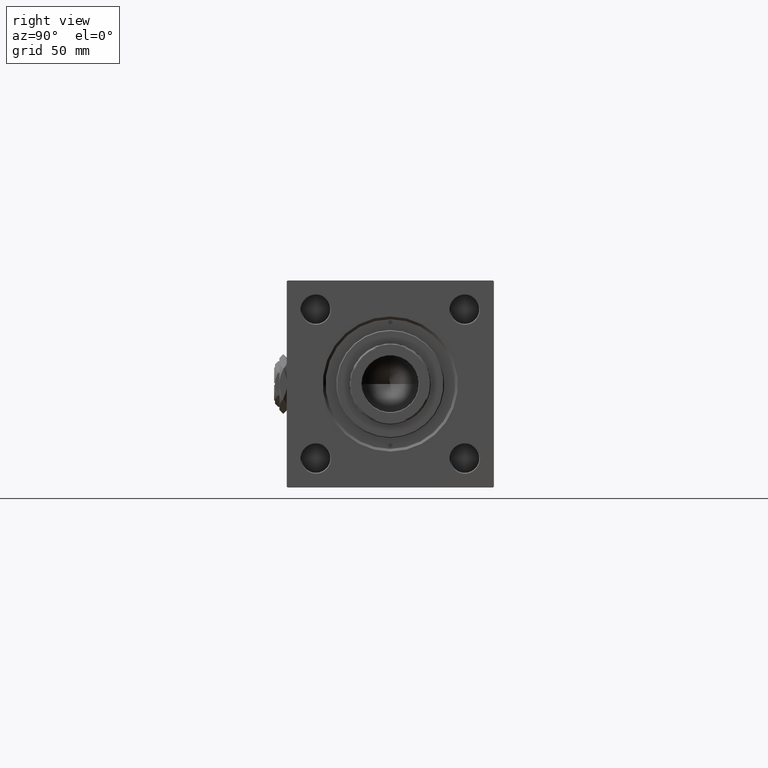
[diagram: clean part render]
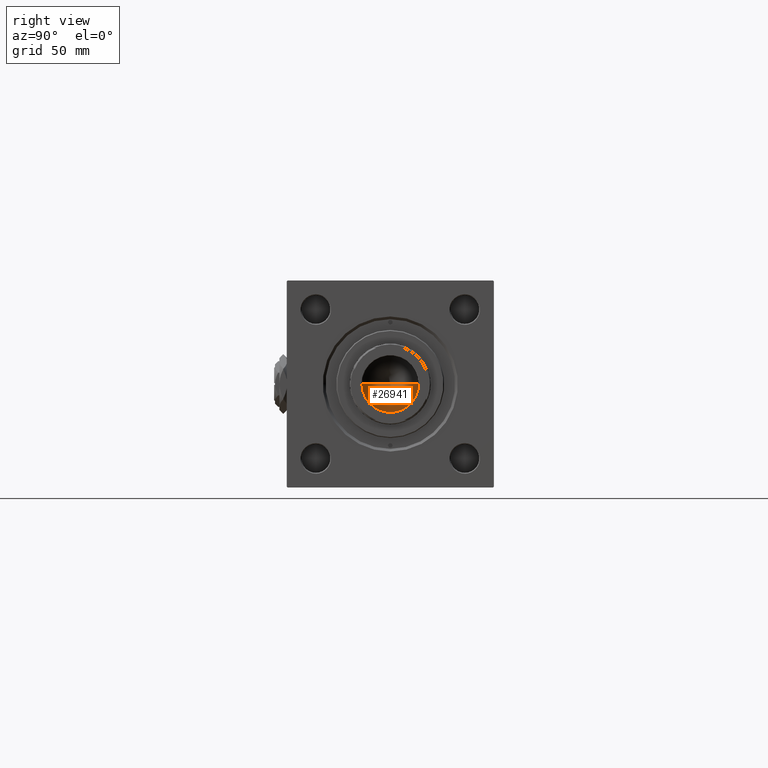
[diagram: same view with one face highlighted and labeled with its STEP entity id]
A machine part, right view. The second image highlights one B-rep face of the part: STEP entity #26941.
In plain terms, the highlighted conical surface has half-angle 59 deg.
Its self-contained STEP definition (entity closure, byte-faithful):
#610 = DIRECTION ( 'NONE',  ( -0.000000000000000000, -0.000000000000000000, 1.000000000000000000 ) ) ;
#1117 = CIRCLE ( 'NONE', #7949, 15.74999999999998934 ) ;
#2245 = EDGE_LOOP ( 'NONE', ( #8493, #37853, #20000 ) ) ;
#5036 = VERTEX_POINT ( 'NONE', #20227 ) ;
#6073 = EDGE_CURVE ( 'NONE', #37994, #20863, #30865, .T. ) ;
#7949 = AXIS2_PLACEMENT_3D ( 'NONE', #51711, #16610, #43664 ) ;
#8493 = ORIENTED_EDGE ( 'NONE', *, *, #6073, .F. ) ;
#16610 = DIRECTION ( 'NONE',  ( -0.000000000000000000, -0.000000000000000000, 1.000000000000000000 ) ) ;
#16912 = DIRECTION ( 'NONE',  ( 1.000000000000000000, 0.000000000000000000, 0.000000000000000000 ) ) ;
#17867 = VECTOR ( 'NONE', #50393, 1000.000000000000000 ) ;
#18416 = VECTOR ( 'NONE', #41291, 1000.000000000000000 ) ;
#19315 = CONICAL_SURFACE ( 'NONE', #27016, 15.74999999999998934, 1.029744258676652313 ) ;
#20000 = ORIENTED_EDGE ( 'NONE', *, *, #42915, .T. ) ;
#20227 = CARTESIAN_POINT ( 'NONE',  ( 15.74999999999998934, 0.000000000000000000, 251.0000000000000000 ) ) ;
#20863 = VERTEX_POINT ( 'NONE', #50705 ) ;
#25009 = LINE ( 'NONE', #28752, #18416 ) ;
#26591 = CARTESIAN_POINT ( 'NONE',  ( -15.74999999999998934, 1.928818708657080161E-15, 251.0000000000000000 ) ) ;
#26941 = ADVANCED_FACE ( 'NONE', ( #32663 ), #19315, .F. ) ;
#27016 = AXIS2_PLACEMENT_3D ( 'NONE', #41202, #610, #16912 ) ;
#28752 = CARTESIAN_POINT ( 'NONE',  ( 15.74999999999998934, 0.000000000000000000, 251.0000000000000000 ) ) ;
#30865 = LINE ( 'NONE', #26591, #17867 ) ;
#32663 = FACE_OUTER_BOUND ( 'NONE', #2245, .T. ) ;
#33379 = CARTESIAN_POINT ( 'NONE',  ( -1.584115414415908206E-14, 0.000000000000000000, 241.5364452503158930 ) ) ;
#37853 = ORIENTED_EDGE ( 'NONE', *, *, #49145, .T. ) ;
#37994 = VERTEX_POINT ( 'NONE', #33379 ) ;
#41202 = CARTESIAN_POINT ( 'NONE',  ( 0.000000000000000000, 0.000000000000000000, 251.0000000000000000 ) ) ;
#41291 = DIRECTION ( 'NONE',  ( 0.8571673007021112234, 0.000000000000000000, 0.5150380749100560429 ) ) ;
#42915 = EDGE_CURVE ( 'NONE', #5036, #20863, #1117, .T. ) ;
#43664 = DIRECTION ( 'NONE',  ( 1.000000000000000000, 0.000000000000000000, 0.000000000000000000 ) ) ;
#49145 = EDGE_CURVE ( 'NONE', #37994, #5036, #25009, .T. ) ;
#50393 = DIRECTION ( 'NONE',  ( -0.8571673007021112234, 1.049727191138617340E-16, 0.5150380749100560429 ) ) ;
#50705 = CARTESIAN_POINT ( 'NONE',  ( -15.74999999999998934, 1.928818708657080161E-15, 251.0000000000000000 ) ) ;
#51711 = CARTESIAN_POINT ( 'NONE',  ( 0.000000000000000000, 0.000000000000000000, 251.0000000000000000 ) ) ;